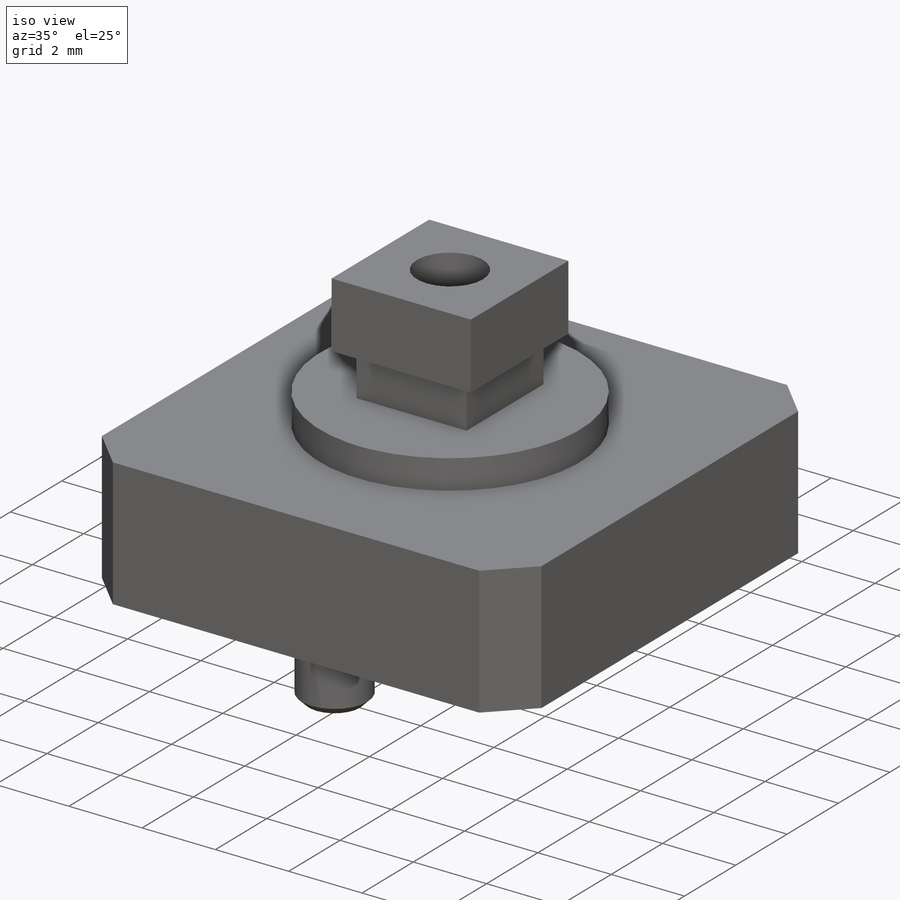
[diagram: iso view]
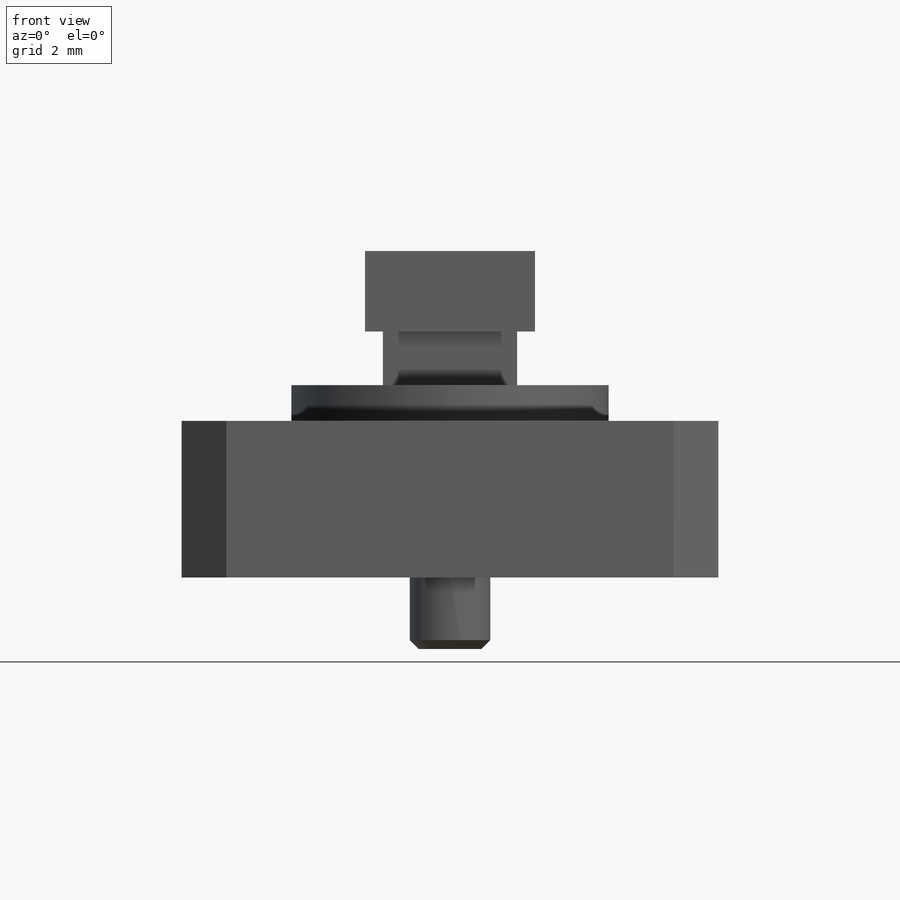
[diagram: front view]
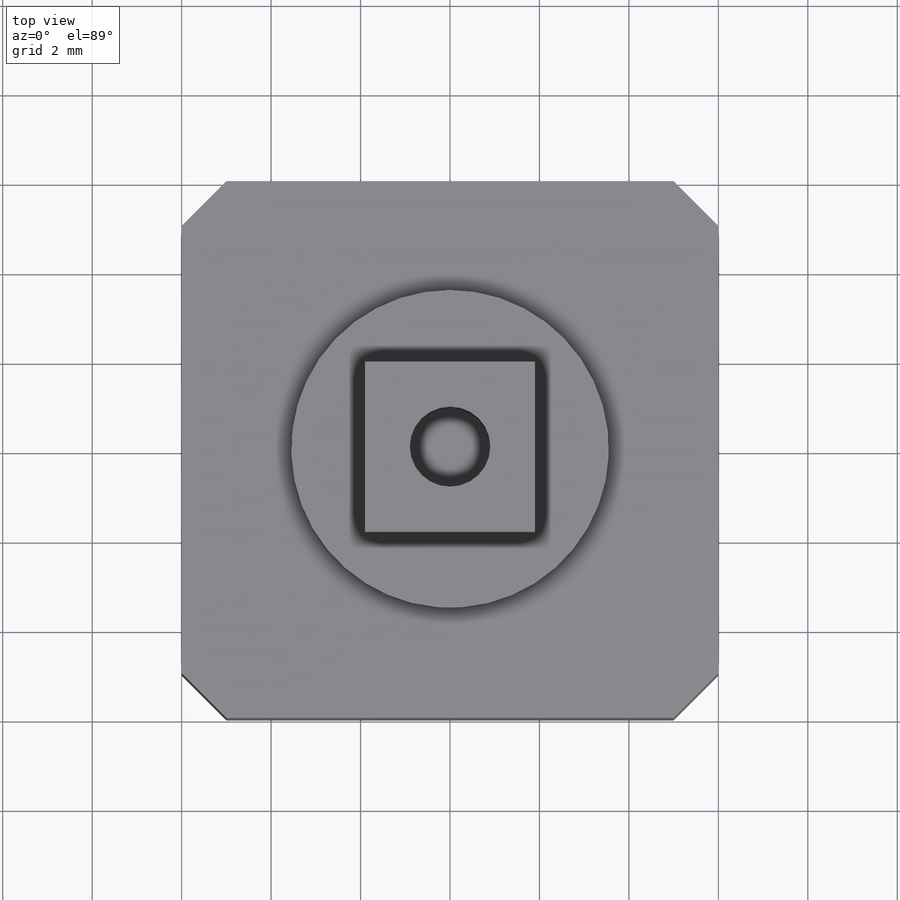
[diagram: top view]
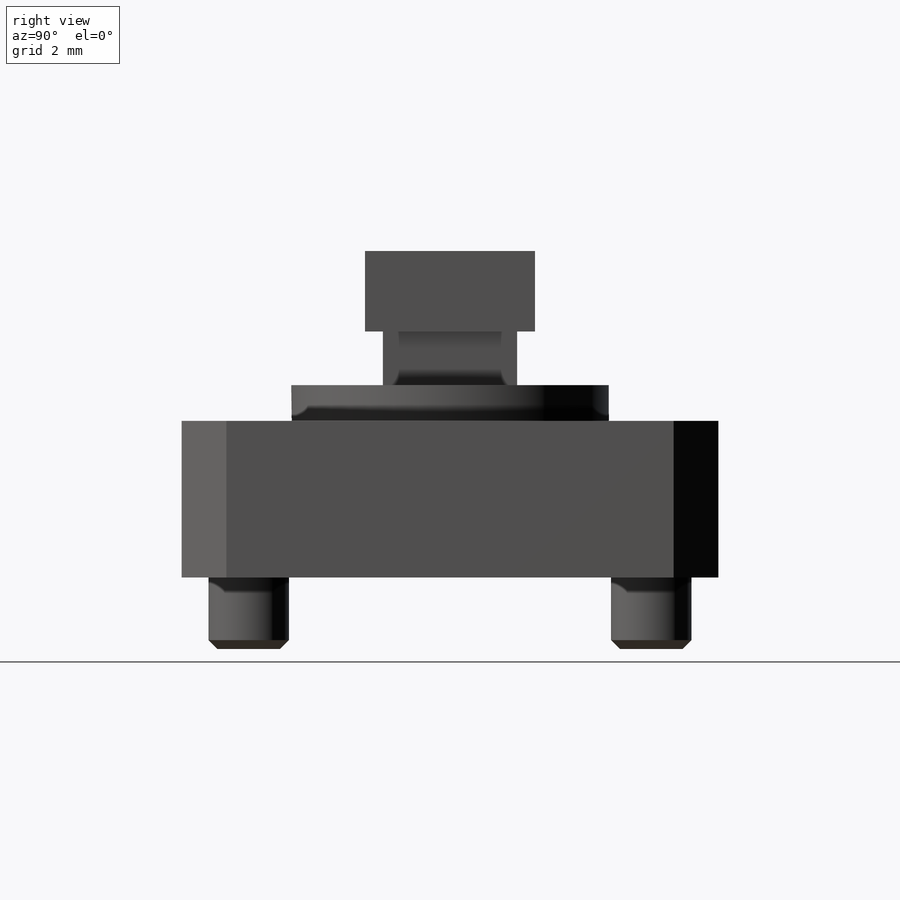
[diagram: right view]
SOLIDWORKS PART (.sldprt)
format: sldprt  version: not decoded by parser v0  size: 237,568 bytes
history: native  units: mm
features: sketch x6, extrude x5, material x1, chamfer x1, cut_extrude x1 + 1 further entry (+12 scaffold rows collapsed)
feature tree (27):
  scaffold x12  (default folders/planes/origin — collapsed)
  material  "Material <not specified>"
  "Annotations"  RD1=3.5mm RD2=1.6mm RD3=9mm
  sketch  "Sketch1"  dims[D1=12.0mm D2=12.0mm]
  extrude  "Boss-Extrude1"  Depth=3.5mm
  sketch  "Sketch2"  dims[D1=1.8mm D2=4.5mm]
  extrude  "Boss-Extrude2"  Depth=1.6mm
  chamfer  "Chamfer1"  Distance=0.2mm Angle=45deg
  sketch  "Sketch3"  dims[D1=7.1mm]
  extrude  "Boss-Extrude3"  Depth=0.8mm
  sketch  "Sketch4"  dims[D1=3.0mm D2=3.0mm]
  extrude  "Boss-Extrude4"  Depth=1.2mm
  sketch  "Sketch5"  dims[D1=3.8mm D2=3.8mm]
  extrude  "Boss-Extrude5"  Depth=1.8mm
  sketch  "Sketch6"  dims[D1=1.8mm]
  cut_extrude  "Cut-Extrude1"  Depth=2mm
decode coverage: 13 of 13 modeling features carry decoded parameters; 1 rows unclassified (native names shown)
note: suppression state not decoded; provenance and decode notes live in map.json
